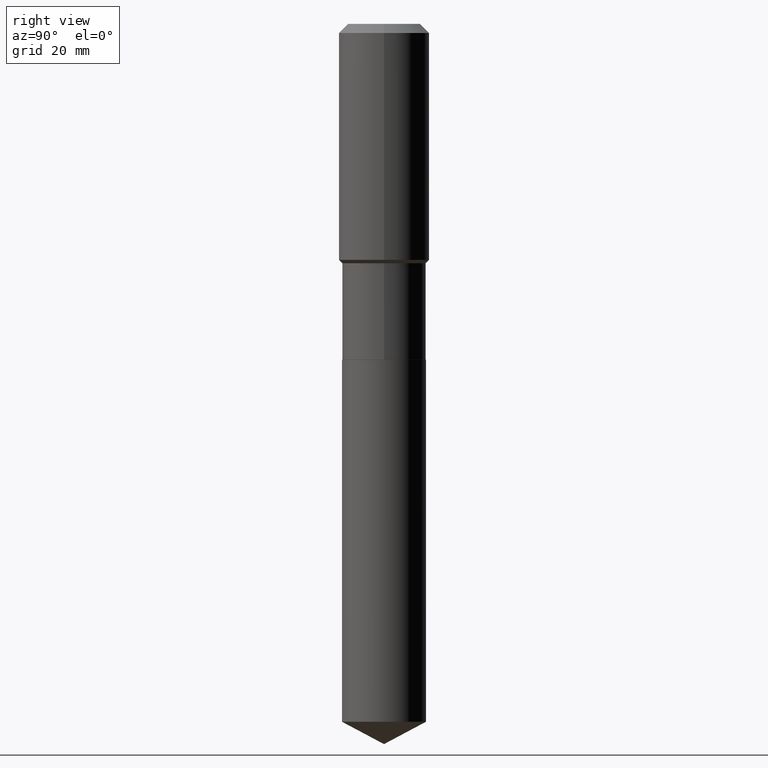
[diagram: clean part render]
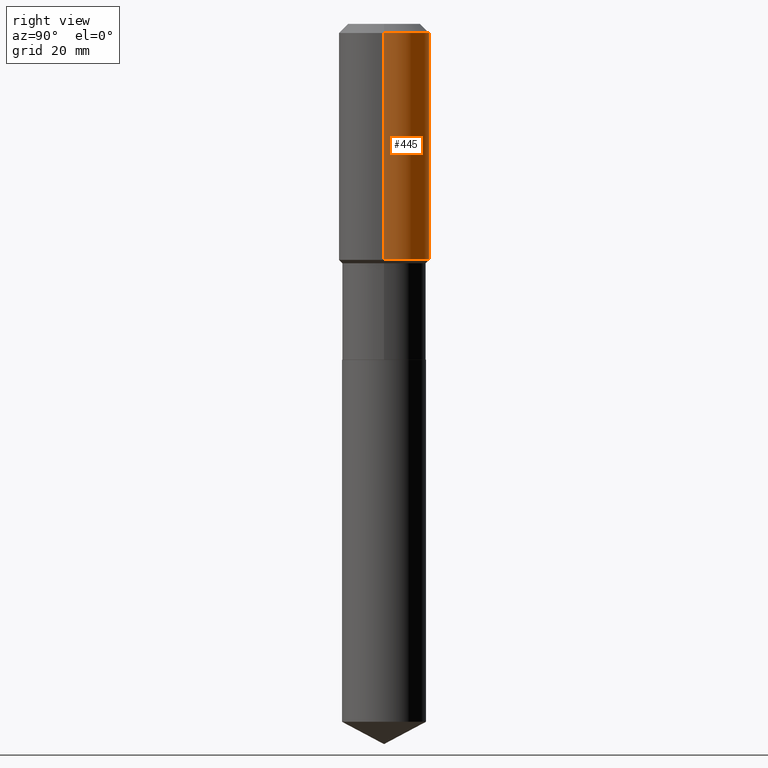
[diagram: same view with one face highlighted and labeled with its STEP entity id]
A machine part, right view. The second image highlights one B-rep face of the part: STEP entity #445.
In plain terms, the highlighted cylindrical surface (partial cylindrical patch) has radius 9.0005 mm, axis along (-0, 0, 1).
Its self-contained STEP definition (entity closure, byte-faithful):
#11 = EDGE_CURVE ( 'NONE', #171, #158, #235, .T. ) ;
#38 = AXIS2_PLACEMENT_3D ( 'NONE', #396, #443, #213 ) ;
#67 = CARTESIAN_POINT ( 'NONE',  ( 0.000000000000000000, 0.000000000000000000, 0.000000000000000000 ) ) ;
#94 = ORIENTED_EDGE ( 'NONE', *, *, #288, .F. ) ;
#118 = ORIENTED_EDGE ( 'NONE', *, *, #172, .T. ) ;
#136 = DIRECTION ( 'NONE',  ( -2.445468806185136597E-29, 3.491481338843145583E-15, 1.000000000000000000 ) ) ;
#143 = CYLINDRICAL_SURFACE ( 'NONE', #430, 0.3543500000000001648 ) ;
#158 = VERTEX_POINT ( 'NONE', #488 ) ;
#171 = VERTEX_POINT ( 'NONE', #351 ) ;
#172 = EDGE_CURVE ( 'NONE', #309, #209, #265, .T. ) ;
#173 = CARTESIAN_POINT ( 'NONE',  ( 4.510300392687555505E-29, -6.439513607295354622E-15, -1.844349999999999712 ) ) ;
#208 = DIRECTION ( 'NONE',  ( -2.445468806185136877E-29, 3.491481338843145188E-15, 1.000000000000000000 ) ) ;
#209 = VERTEX_POINT ( 'NONE', #234 ) ;
#213 = DIRECTION ( 'NONE',  ( 1.000000000000000000, -6.982962677686266711E-15, 0.000000000000000000 ) ) ;
#234 = CARTESIAN_POINT ( 'NONE',  ( -0.3543500000000002204, -3.921705423129438442E-15, -1.844349999999999712 ) ) ;
#235 = CIRCLE ( 'NONE', #38, 0.3543499999999999983 ) ;
#243 = DIRECTION ( 'NONE',  ( -2.445468806185136597E-29, 3.491481338843145583E-15, 1.000000000000000000 ) ) ;
#245 = VECTOR ( 'NONE', #251, 39.37007874015748143 ) ;
#248 = CARTESIAN_POINT ( 'NONE',  ( 0.3543500000000002204, -8.913926432133485288E-15, -1.844349999999999712 ) ) ;
#251 = DIRECTION ( 'NONE',  ( -2.445468806185136877E-29, 3.491481338843145188E-15, 1.000000000000000000 ) ) ;
#265 = CIRCLE ( 'NONE', #303, 0.3543500000000002204 ) ;
#276 = LINE ( 'NONE', #391, #403 ) ;
#284 = DIRECTION ( 'NONE',  ( 1.000000000000000000, -6.982962677686265922E-15, 4.876176775795935793E-29 ) ) ;
#288 = EDGE_CURVE ( 'NONE', #309, #171, #276, .T. ) ;
#303 = AXIS2_PLACEMENT_3D ( 'NONE', #173, #243, #464 ) ;
#309 = VERTEX_POINT ( 'NONE', #248 ) ;
#311 = ORIENTED_EDGE ( 'NONE', *, *, #11, .F. ) ;
#322 = LINE ( 'NONE', #440, #245 ) ;
#351 = CARTESIAN_POINT ( 'NONE',  ( 0.3543499999999999983, -2.721854107321943733E-15, -0.07087000000000043265 ) ) ;
#352 = ORIENTED_EDGE ( 'NONE', *, *, #419, .T. ) ;
#391 = CARTESIAN_POINT ( 'NONE',  ( 0.3543500000000001648, -2.474412824838129483E-15, 1.727873240503290590E-29 ) ) ;
#396 = CARTESIAN_POINT ( 'NONE',  ( 1.733103742943417062E-30, -2.474412824838152853E-16, -0.07087000000000043265 ) ) ;
#403 = VECTOR ( 'NONE', #208, 39.37007874015748143 ) ;
#419 = EDGE_CURVE ( 'NONE', #209, #158, #322, .T. ) ;
#430 = AXIS2_PLACEMENT_3D ( 'NONE', #67, #136, #284 ) ;
#440 = CARTESIAN_POINT ( 'NONE',  ( -0.3543500000000001648, 2.517808184165916180E-15, -1.743024649231826627E-29 ) ) ;
#443 = DIRECTION ( 'NONE',  ( -2.445468806185136597E-29, 3.491481338843145583E-15, 1.000000000000000000 ) ) ;
#445 = ADVANCED_FACE ( 'NONE', ( #482 ), #143, .T. ) ;
#464 = DIRECTION ( 'NONE',  ( 1.000000000000000000, -6.982962677686266711E-15, 0.000000000000000000 ) ) ;
#465 = EDGE_LOOP ( 'NONE', ( #118, #352, #311, #94 ) ) ;
#482 = FACE_OUTER_BOUND ( 'NONE', #465, .T. ) ;
#488 = CARTESIAN_POINT ( 'NONE',  ( -0.3543499999999999983, -8.256692607236688475E-16, -0.07087000000000043265 ) ) ;